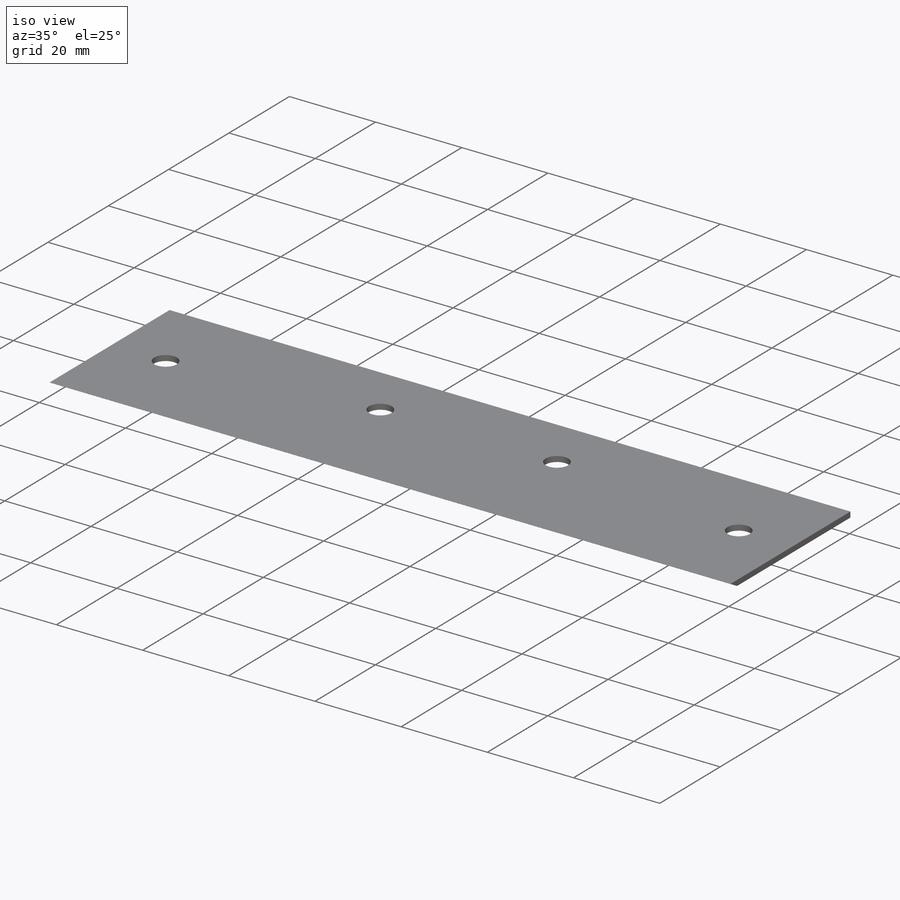
[diagram: iso view]
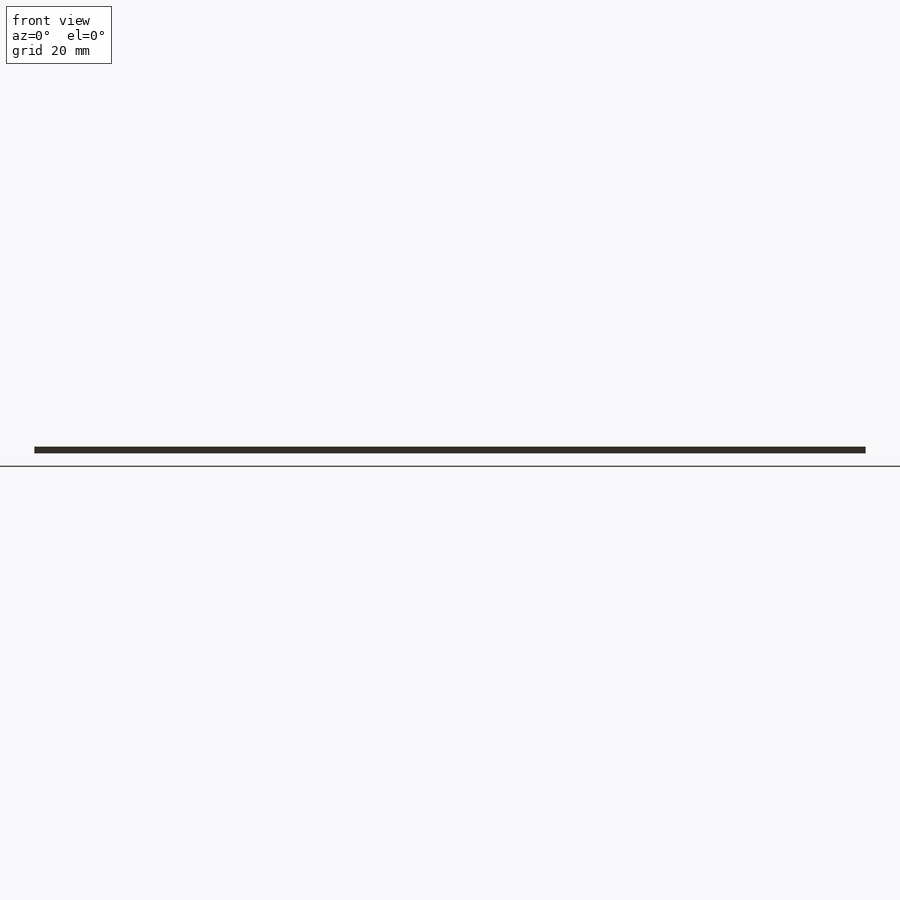
[diagram: front view]
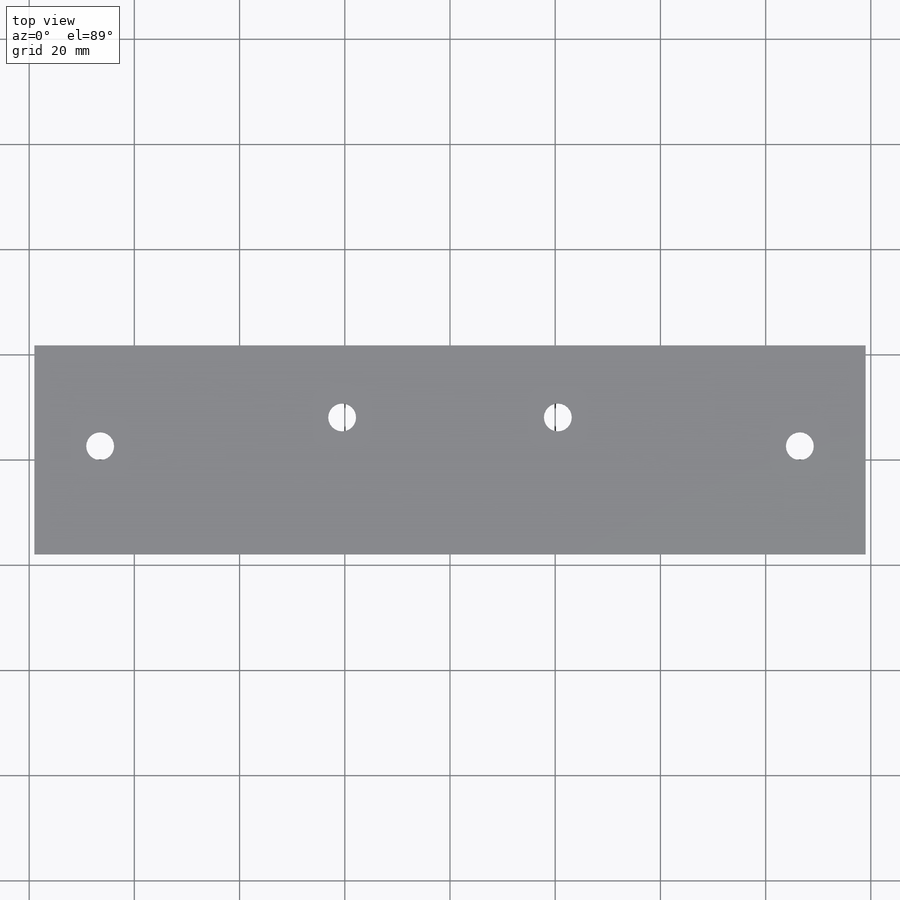
[diagram: top view]
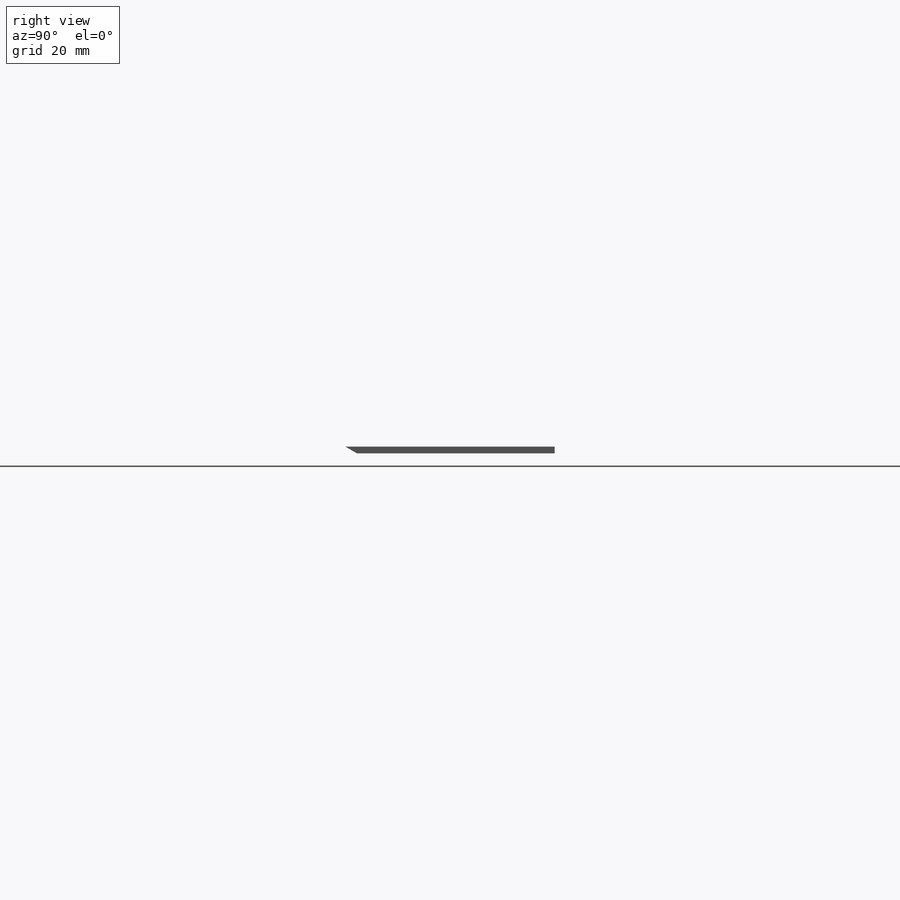
[diagram: right view]
SOLIDWORKS PART (.sldprt)
format: sldprt  version: not decoded by parser v0  size: 189,440 bytes
history: native  units: mm
features: sketch x5, cut_extrude x2, material x1, extrude x1, hole x1 (+11 scaffold rows collapsed)
feature tree (21):
  scaffold x11  (default folders/planes/origin — collapsed)
  material  "Ti-6Al-4VSolution treated and aged (SS)"
  sketch  "Sketch1"  dims[D1=43.5mm D2=158.0mm]
  extrude  "Boss-Extrude1"  Depth=1.27mm
  sketch  "Sketch2"  dims[c1.D1=~29.836554mm c2.D1=60.0deg c2.D2=4.5mm c3.D1=2.0mm]
  cut_extrude  "Cut-Extrude1"  [1 undecoded]
  hole  "M5 Clearance Hole1"  Diameter=5.3mm Depth=1.27mm
  sketch  "Sketch4"
  sketch  "Sketch3"  dims[hole-wizard template sketch: 59 standard entries collapsed; hole parameters kept: c18.Thru Hole Dia.=5.3mm c18.Thru Hole Depth=1.27mm]
  sketch  "Sketch5"
  cut_extrude  "Cut-Extrude2"  [1 undecoded]
decode coverage: 5 of 9 modeling features carry decoded parameters
note: ~ marks probable driven/reference dimensions
note: 2 parameter values undecoded
note: suppression state not decoded; provenance and decode notes live in map.json
